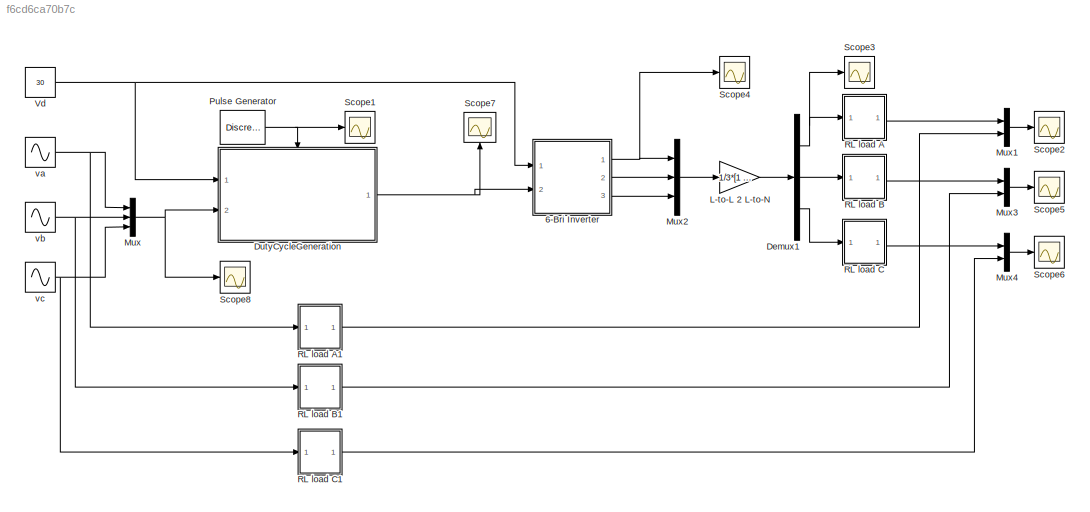
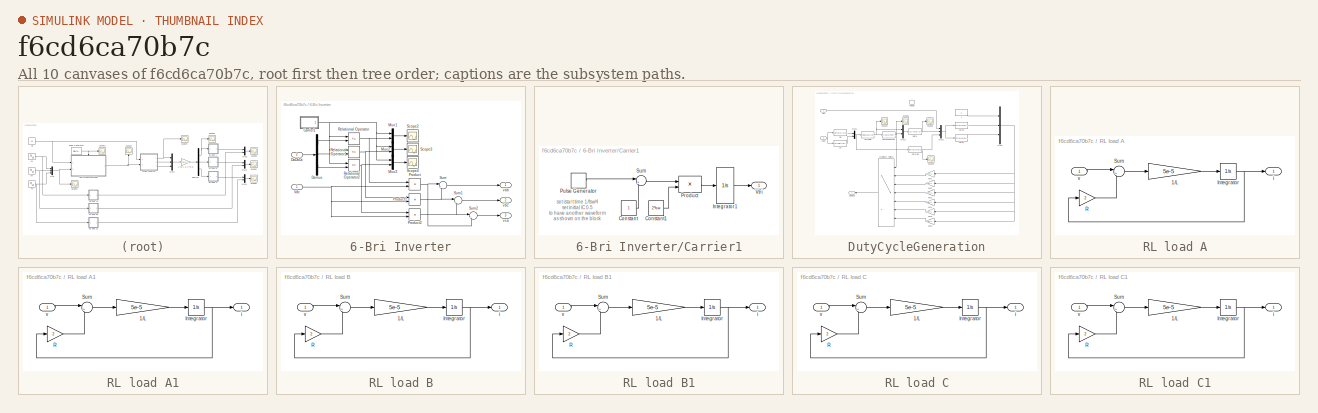
[diagram: thumbnail index - all 10 canvases of the model, root first then tree order]
MODEL slx_f6cd6ca70b7c
KIND model
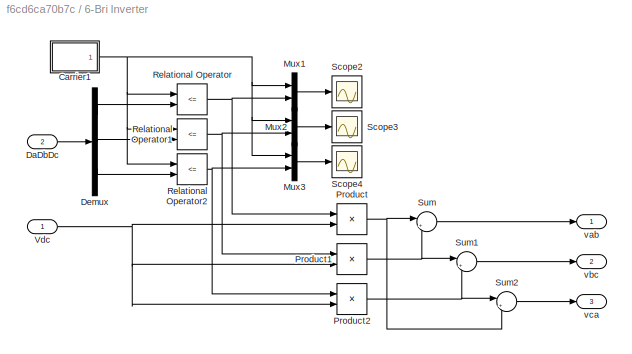
BLOCK [SubSystem] 6-Bri Inverter
  FunctionWithSeparateData = off
  MaskHideContents = off
  MinAlgLoopOccurrences = off
  Opaque = off
  Ports = [2, 3]
  PropExecContextOutsideSubsystem = off
  RTWSystemCode = Auto
  RequestExecContextInheritance = off
BLOCK [SubSystem] 6-Bri Inverter/Carrier1
  FunctionWithSeparateData = off
  MaskHideContents = off
  MinAlgLoopOccurrences = off
  Opaque = off
  Ports = [0, 1]
  PropExecContextOutsideSubsystem = off
  RTWSystemCode = Auto
  RequestExecContextInheritance = off
BLOCK [Constant] 6-Bri Inverter/Carrier1/Constant
BLOCK [Constant] 6-Bri Inverter/Carrier1/Constant1
  Value = 2*fsw
BLOCK [Integrator] 6-Bri Inverter/Carrier1/Integrator1
  Ports = [1, 1]
BLOCK [Product] 6-Bri Inverter/Carrier1/Product
  InputSameDT = off
  Ports = [2, 1]
  RndMeth = Floor
BLOCK [DiscretePulseGenerator] 6-Bri Inverter/Carrier1/Pulse Generator
  Amplitude = 2
  Period = 1/fsw
  Ports = [0, 1]
  PulseType = Time based
  PulseWidth = 50
BLOCK [Sum] 6-Bri Inverter/Carrier1/Sum
  IconShape = round
  InputSameDT = off
  Inputs = |+-
  OutDataTypeStr = Inherit: Inherit via internal rule
  Ports = [2, 1]
BLOCK [Outport] 6-Bri Inverter/Carrier1/Vtri
  IconDisplay = Port number
  InitialOutput = 0
BLOCK [Inport] 6-Bri Inverter/DaDbDc
  IconDisplay = Port number
  Port = 2
BLOCK [Demux] 6-Bri Inverter/Demux
  DisplayOption = bar
  Outputs = 3
  Ports = [1, 3]
BLOCK [Mux] 6-Bri Inverter/Mux1
  DisplayOption = bar
  Inputs = 2
  Ports = [2, 1]
BLOCK [Mux] 6-Bri Inverter/Mux2
  DisplayOption = bar
  Inputs = 2
  Ports = [2, 1]
BLOCK [Mux] 6-Bri Inverter/Mux3
  DisplayOption = bar
  Inputs = 2
  Ports = [2, 1]
BLOCK [Product] 6-Bri Inverter/Product
  InputSameDT = off
  OutDataTypeStr = Inherit: Inherit via internal rule
  Ports = [2, 1]
  SaturateOnIntegerOverflow = off
BLOCK [Product] 6-Bri Inverter/Product1
  InputSameDT = off
  OutDataTypeStr = Inherit: Inherit via internal rule
  Ports = [2, 1]
  SaturateOnIntegerOverflow = off
BLOCK [Product] 6-Bri Inverter/Product2
  InputSameDT = off
  OutDataTypeStr = Inherit: Inherit via internal rule
  Ports = [2, 1]
  SaturateOnIntegerOverflow = off
BLOCK [RelationalOperator] 6-Bri Inverter/Relational Operator
  InputSameDT = off
  Operator = <=
  Ports = [2, 1]
BLOCK [RelationalOperator] 6-Bri Inverter/Relational Operator1
  InputSameDT = off
  Operator = <=
  Ports = [2, 1]
BLOCK [RelationalOperator] 6-Bri Inverter/Relational Operator2
  InputSameDT = off
  Operator = <=
  Ports = [2, 1]
BLOCK [Scope] 6-Bri Inverter/Scope2
  DataFormat = StructureWithTime
  Floating = off
  NumInputPorts = 1
  Ports = [1]
  SampleTime = 0
  SaveName = ScopeData5
  ShowLegends = off
  ZoomMode = xonly
BLOCK [Scope] 6-Bri Inverter/Scope3
  DataFormat = StructureWithTime
  Floating = off
  NumInputPorts = 1
  Ports = [1]
  SampleTime = 0
  SaveName = ScopeData7
  ShowLegends = off
  ZoomMode = xonly
BLOCK [Scope] 6-Bri Inverter/Scope4
  DataFormat = StructureWithTime
  Floating = off
  NumInputPorts = 1
  Ports = [1]
  SampleTime = 0
  SaveName = ScopeData8
  ShowLegends = off
  ZoomMode = xonly
BLOCK [Sum] 6-Bri Inverter/Sum
  IconShape = round
  InputSameDT = off
  Inputs = |+-
  OutDataTypeStr = Inherit: Inherit via internal rule
  Ports = [2, 1]
  SaturateOnIntegerOverflow = off
BLOCK [Sum] 6-Bri Inverter/Sum1
  IconShape = round
  InputSameDT = off
  Inputs = |+-
  OutDataTypeStr = Inherit: Inherit via internal rule
  Ports = [2, 1]
  SaturateOnIntegerOverflow = off
BLOCK [Sum] 6-Bri Inverter/Sum2
  IconShape = round
  InputSameDT = off
  Inputs = |+-
  OutDataTypeStr = Inherit: Inherit via internal rule
  Ports = [2, 1]
  SaturateOnIntegerOverflow = off
BLOCK [Inport] 6-Bri Inverter/Vdc
  IconDisplay = Port number
BLOCK [Outport] 6-Bri Inverter/vab
  IconDisplay = Port number
BLOCK [Outport] 6-Bri Inverter/vbc
  IconDisplay = Port number
  Port = 2
BLOCK [Outport] 6-Bri Inverter/vca
  IconDisplay = Port number
  Port = 3
BLOCK [Demux] Demux1
  DisplayOption = bar
  Outputs = 3
  Ports = [1, 3]
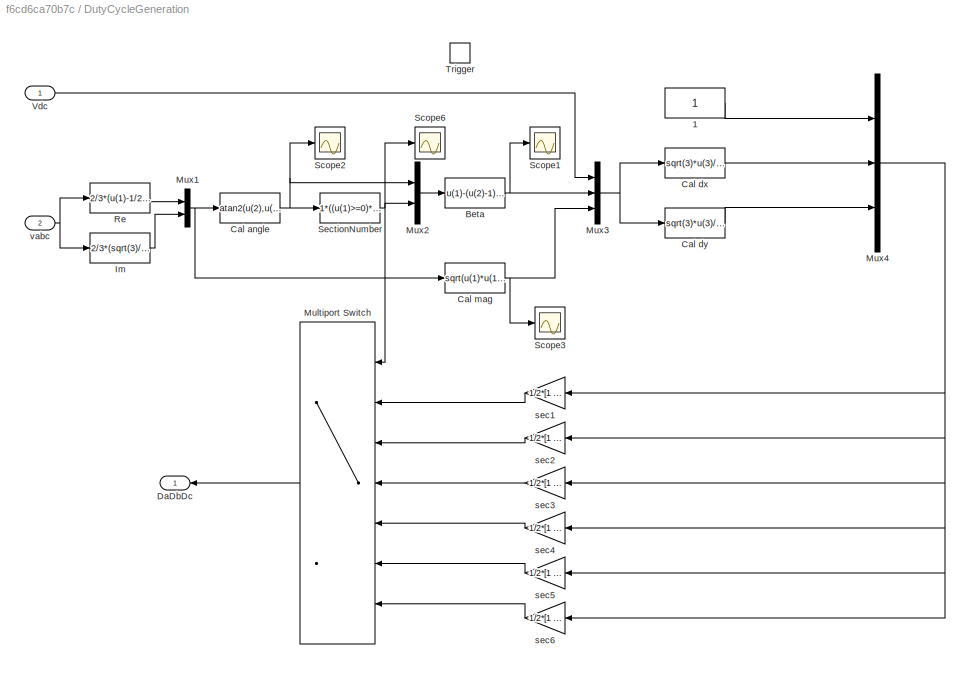
BLOCK [SubSystem] DutyCycleGeneration
  FunctionWithSeparateData = off
  MaskHideContents = off
  MinAlgLoopOccurrences = off
  Opaque = off
  Ports = [2, 1, 0, 1]
  PropExecContextOutsideSubsystem = off
  RTWSystemCode = Auto
  RequestExecContextInheritance = off
BLOCK [Constant] DutyCycleGeneration/1
BLOCK [Fcn] DutyCycleGeneration/Beta
  Expr = u(1)-(u(2)-1)*60
BLOCK [Fcn] DutyCycleGeneration/Cal angle
  Expr = atan2(u(2),u(1))*180/pi+(u(2)<0)*360
BLOCK [Fcn] DutyCycleGeneration/Cal dx
  Expr = sqrt(3)*u(3)/u(1)*sin(pi/3-u(2)*pi/180)
BLOCK [Fcn] DutyCycleGeneration/Cal dy
  Expr = sqrt(3)*u(3)/u(1)*sin(u(2)*pi/180)
BLOCK [Fcn] DutyCycleGeneration/Cal mag 
  Expr = sqrt(u(1)*u(1)+u(2)*u(2))
BLOCK [Outport] DutyCycleGeneration/DaDbDc
  IconDisplay = Port number
BLOCK [Fcn] DutyCycleGeneration/Im
  Expr = 2/3*(sqrt(3)/2*u(2)-sqrt(3)/2*u(3))
BLOCK [MultiPortSwitch] DutyCycleGeneration/Multiport Switch
  InputSameDT = off
  Inputs = 6
  Ports = [7, 1]
  SaturateOnIntegerOverflow = off
BLOCK [Mux] DutyCycleGeneration/Mux1
  DisplayOption = bar
  Inputs = 2
  Ports = [2, 1]
BLOCK [Mux] DutyCycleGeneration/Mux2
  DisplayOption = bar
  Inputs = 2
  Ports = [2, 1]
BLOCK [Mux] DutyCycleGeneration/Mux3
  DisplayOption = bar
  Inputs = 3
  Ports = [3, 1]
BLOCK [Mux] DutyCycleGeneration/Mux4
  DisplayOption = bar
  Inputs = 3
  Ports = [3, 1]
BLOCK [Fcn] DutyCycleGeneration/Re
  Expr = 2/3*(u(1)-1/2*u(2)-1/2*u(3))
BLOCK [Scope] DutyCycleGeneration/Scope1
  DataFormat = StructureWithTime
  Floating = off
  NumInputPorts = 1
  Ports = [1]
  SampleTime = 0
  SaveName = ScopeData1
  ShowLegends = off
  ZoomMode = xonly
BLOCK [Scope] DutyCycleGeneration/Scope2
  DataFormat = StructureWithTime
  Floating = off
  NumInputPorts = 1
  Ports = [1]
  SampleTime = 0
  SaveName = ScopeData2
  ShowLegends = off
BLOCK [Scope] DutyCycleGeneration/Scope3
  DataFormat = StructureWithTime
  Floating = off
  NumInputPorts = 1
  Ports = [1]
  SampleTime = 0
  SaveName = ScopeData3
  ShowLegends = off
  ZoomMode = xonly
BLOCK [Scope] DutyCycleGeneration/Scope6
  DataFormat = StructureWithTime
  Floating = off
  NumInputPorts = 1
  Ports = [1]
  SampleTime = 0
  SaveName = ScopeData6
  ShowLegends = off
BLOCK [Fcn] DutyCycleGeneration/SectionNumber
  Expr = 1*((u(1)>=0)*(u(1)<60))+2*((u(1)>=60)*(u(1)<120))+3*((u(1)>=120)*(u(1)<180))+4*((u(1)>=180)*(u(1)<240))+5*((u(1)>=240)*(u(1)<300))+6*((u(1)>=300)*(u(1)<=360))
BLOCK [TriggerPort] DutyCycleGeneration/Trigger
  Ports = []
  StatesWhenEnabling = held
BLOCK [Inport] DutyCycleGeneration/Vdc
  IconDisplay = Port number
BLOCK [Gain] DutyCycleGeneration/sec1
  Gain = 1/2*[1 1 1; 1 -1 1; 1 -1 -1]
  Multiplication = Matrix(K*u)
  OutDataTypeStr = Inherit: Inherit via internal rule
  ParamDataTypeStr = Inherit: Inherit via internal rule
  SaturateOnIntegerOverflow = off
BLOCK [Gain] DutyCycleGeneration/sec2
  Gain = 1/2*[1 1 -1; 1 1 1; 1 -1 -1]
  Multiplication = Matrix(K*u)
  OutDataTypeStr = Inherit: Inherit via internal rule
  ParamDataTypeStr = Inherit: Inherit via internal rule
  SaturateOnIntegerOverflow = off
BLOCK [Gain] DutyCycleGeneration/sec3
  Gain = 1/2*[1 -1 -1; 1 1 1; 1 -1 1]
  Multiplication = Matrix(K*u)
  OutDataTypeStr = Inherit: Inherit via internal rule
  ParamDataTypeStr = Inherit: Inherit via internal rule
  SaturateOnIntegerOverflow = off
BLOCK [Gain] DutyCycleGeneration/sec4
  Gain = 1/2*[1 -1 -1; 1 1 -1; 1 1 1]
  Multiplication = Matrix(K*u)
  OutDataTypeStr = Inherit: Inherit via internal rule
  ParamDataTypeStr = Inherit: Inherit via internal rule
  SaturateOnIntegerOverflow = off
BLOCK [Gain] DutyCycleGeneration/sec5
  Gain = 1/2*[1 -1 1; 1 -1 -1; 1 1 1]
  Multiplication = Matrix(K*u)
  OutDataTypeStr = Inherit: Inherit via internal rule
  ParamDataTypeStr = Inherit: Inherit via internal rule
  SaturateOnIntegerOverflow = off
BLOCK [Gain] DutyCycleGeneration/sec6
  Gain = 1/2*[1 1 1; 1 -1 -1; 1 1 -1]
  Multiplication = Matrix(K*u)
  OutDataTypeStr = Inherit: Inherit via internal rule
  ParamDataTypeStr = Inherit: Inherit via internal rule
  SaturateOnIntegerOverflow = off
BLOCK [Inport] DutyCycleGeneration/vabc
  IconDisplay = Port number
  Port = 2
BLOCK [Gain] L-to-L 2 L-to-N
  Gain = 1/3*[1 0 -1; -1 1 0; 0 -1 1]
  Multiplication = Matrix(K*u)
  OutDataTypeStr = Inherit: Inherit via internal rule
  ParamDataTypeStr = Inherit: Inherit via internal rule
  SaturateOnIntegerOverflow = off
BLOCK [Mux] Mux
  DisplayOption = bar
  Inputs = 3
  Ports = [3, 1]
BLOCK [Mux] Mux1
  DisplayOption = bar
  Inputs = 2
  Ports = [2, 1]
BLOCK [Mux] Mux2
  DisplayOption = bar
  Inputs = 3
  Ports = [3, 1]
BLOCK [Mux] Mux3
  DisplayOption = bar
  Inputs = 2
  Ports = [2, 1]
BLOCK [Mux] Mux4
  DisplayOption = bar
  Inputs = 2
  Ports = [2, 1]
BLOCK [DiscretePulseGenerator] Pulse Generator
  Period = 1/fs
  PhaseDelay = 1/fs/4
  Ports = [0, 1]
  PulseType = Time based
  PulseWidth = 50
BLOCK [SubSystem] RL load A
  FunctionWithSeparateData = off
  MaskHideContents = off
  MinAlgLoopOccurrences = off
  Opaque = off
  Ports = [1, 1]
  PropExecContextOutsideSubsystem = off
  RTWSystemCode = Auto
  RequestExecContextInheritance = off
BLOCK [Gain] RL load A/1//L
  Gain = 5e-5
  OutDataTypeStr = Inherit: Inherit via internal rule
  ParamDataTypeStr = Inherit: Inherit via internal rule
  SaturateOnIntegerOverflow = off
BLOCK [Integrator] RL load A/Integrator
  Ports = [1, 1]
BLOCK [Gain] RL load A/R
  Gain = 2
  OutDataTypeStr = Inherit: Inherit via internal rule
  ParamDataTypeStr = Inherit: Inherit via internal rule
  SaturateOnIntegerOverflow = off
BLOCK [Sum] RL load A/Sum
  IconShape = round
  InputSameDT = off
  Inputs = |+-
  OutDataTypeStr = Inherit: Inherit via internal rule
  Ports = [2, 1]
  SaturateOnIntegerOverflow = off
BLOCK [Outport] RL load A/i
  IconDisplay = Port number
BLOCK [Inport] RL load A/v
  IconDisplay = Port number
BLOCK [SubSystem] RL load A1
  FunctionWithSeparateData = off
  MaskHideContents = off
  MinAlgLoopOccurrences = off
  Opaque = off
  Ports = [1, 1]
  PropExecContextOutsideSubsystem = off
  RTWSystemCode = Auto
  RequestExecContextInheritance = off
BLOCK [Gain] RL load A1/1//L
  Gain = 5e-5
  OutDataTypeStr = Inherit: Inherit via internal rule
  ParamDataTypeStr = Inherit: Inherit via internal rule
  SaturateOnIntegerOverflow = off
BLOCK [Integrator] RL load A1/Integrator
  Ports = [1, 1]
BLOCK [Gain] RL load A1/R
  Gain = 2
  OutDataTypeStr = Inherit: Inherit via internal rule
  ParamDataTypeStr = Inherit: Inherit via internal rule
  SaturateOnIntegerOverflow = off
BLOCK [Sum] RL load A1/Sum
  IconShape = round
  InputSameDT = off
  Inputs = |+-
  OutDataTypeStr = Inherit: Inherit via internal rule
  Ports = [2, 1]
  SaturateOnIntegerOverflow = off
BLOCK [Outport] RL load A1/i
  IconDisplay = Port number
BLOCK [Inport] RL load A1/v
  IconDisplay = Port number
BLOCK [SubSystem] RL load B
  FunctionWithSeparateData = off
  MaskHideContents = off
  MinAlgLoopOccurrences = off
  Opaque = off
  Ports = [1, 1]
  PropExecContextOutsideSubsystem = off
  RTWSystemCode = Auto
  RequestExecContextInheritance = off
BLOCK [Gain] RL load B/1//L
  Gain = 5e-5
  OutDataTypeStr = Inherit: Inherit via internal rule
  ParamDataTypeStr = Inherit: Inherit via internal rule
  SaturateOnIntegerOverflow = off
BLOCK [Integrator] RL load B/Integrator
  Ports = [1, 1]
BLOCK [Gain] RL load B/R
  Gain = 2
  OutDataTypeStr = Inherit: Inherit via internal rule
  ParamDataTypeStr = Inherit: Inherit via internal rule
  SaturateOnIntegerOverflow = off
BLOCK [Sum] RL load B/Sum
  IconShape = round
  InputSameDT = off
  Inputs = |+-
  OutDataTypeStr = Inherit: Inherit via internal rule
  Ports = [2, 1]
  SaturateOnIntegerOverflow = off
BLOCK [Outport] RL load B/i
  IconDisplay = Port number
BLOCK [Inport] RL load B/v
  IconDisplay = Port number
BLOCK [SubSystem] RL load B1
  FunctionWithSeparateData = off
  MaskHideContents = off
  MinAlgLoopOccurrences = off
  Opaque = off
  Ports = [1, 1]
  PropExecContextOutsideSubsystem = off
  RTWSystemCode = Auto
  RequestExecContextInheritance = off
BLOCK [Gain] RL load B1/1//L
  Gain = 5e-5
  OutDataTypeStr = Inherit: Inherit via internal rule
  ParamDataTypeStr = Inherit: Inherit via internal rule
  SaturateOnIntegerOverflow = off
BLOCK [Integrator] RL load B1/Integrator
  Ports = [1, 1]
BLOCK [Gain] RL load B1/R
  Gain = 2
  OutDataTypeStr = Inherit: Inherit via internal rule
  ParamDataTypeStr = Inherit: Inherit via internal rule
  SaturateOnIntegerOverflow = off
BLOCK [Sum] RL load B1/Sum
  IconShape = round
  InputSameDT = off
  Inputs = |+-
  OutDataTypeStr = Inherit: Inherit via internal rule
  Ports = [2, 1]
  SaturateOnIntegerOverflow = off
BLOCK [Outport] RL load B1/i
  IconDisplay = Port number
BLOCK [Inport] RL load B1/v
  IconDisplay = Port number
BLOCK [SubSystem] RL load C
  FunctionWithSeparateData = off
  MaskHideContents = off
  MinAlgLoopOccurrences = off
  Opaque = off
  Ports = [1, 1]
  PropExecContextOutsideSubsystem = off
  RTWSystemCode = Auto
  RequestExecContextInheritance = off
BLOCK [Gain] RL load C/1//L
  Gain = 5e-5
  OutDataTypeStr = Inherit: Inherit via internal rule
  ParamDataTypeStr = Inherit: Inherit via internal rule
  SaturateOnIntegerOverflow = off
BLOCK [Integrator] RL load C/Integrator
  Ports = [1, 1]
BLOCK [Gain] RL load C/R
  Gain = 2
  OutDataTypeStr = Inherit: Inherit via internal rule
  ParamDataTypeStr = Inherit: Inherit via internal rule
  SaturateOnIntegerOverflow = off
BLOCK [Sum] RL load C/Sum
  IconShape = round
  InputSameDT = off
  Inputs = |+-
  OutDataTypeStr = Inherit: Inherit via internal rule
  Ports = [2, 1]
  SaturateOnIntegerOverflow = off
BLOCK [Outport] RL load C/i
  IconDisplay = Port number
BLOCK [Inport] RL load C/v
  IconDisplay = Port number
BLOCK [SubSystem] RL load C1
  FunctionWithSeparateData = off
  MaskHideContents = off
  MinAlgLoopOccurrences = off
  Opaque = off
  Ports = [1, 1]
  PropExecContextOutsideSubsystem = off
  RTWSystemCode = Auto
  RequestExecContextInheritance = off
BLOCK [Gain] RL load C1/1//L
  Gain = 5e-5
  OutDataTypeStr = Inherit: Inherit via internal rule
  ParamDataTypeStr = Inherit: Inherit via internal rule
  SaturateOnIntegerOverflow = off
BLOCK [Integrator] RL load C1/Integrator
  Ports = [1, 1]
BLOCK [Gain] RL load C1/R
  Gain = 2
  OutDataTypeStr = Inherit: Inherit via internal rule
  ParamDataTypeStr = Inherit: Inherit via internal rule
  SaturateOnIntegerOverflow = off
BLOCK [Sum] RL load C1/Sum
  IconShape = round
  InputSameDT = off
  Inputs = |+-
  OutDataTypeStr = Inherit: Inherit via internal rule
  Ports = [2, 1]
  SaturateOnIntegerOverflow = off
BLOCK [Outport] RL load C1/i
  IconDisplay = Port number
BLOCK [Inport] RL load C1/v
  IconDisplay = Port number
BLOCK [Scope] Scope1
  DataFormat = StructureWithTime
  Floating = off
  NumInputPorts = 1
  Ports = [1]
  SampleTime = 0
  SaveName = ScopeData4
  ShowLegends = off
  ZoomMode = xonly
BLOCK [Scope] Scope2
  DataFormat = StructureWithTime
  Floating = off
  LimitDataPoints = off
  NumInputPorts = 1
  Ports = [1]
  SampleTime = 0
  SaveName = ScopeData9
  ShowLegends = off
BLOCK [Scope] Scope3
  DataFormat = StructureWithTime
  Floating = off
  NumInputPorts = 1
  Ports = [1]
  SampleTime = 0
  SaveName = ScopeData10
  ShowLegends = off
  ZoomMode = xonly
BLOCK [Scope] Scope4
  DataFormat = StructureWithTime
  Floating = off
  NumInputPorts = 1
  Ports = [1]
  SampleTime = 0
  SaveName = ScopeData11
  ShowLegends = off
  ZoomMode = xonly
BLOCK [Scope] Scope5
  DataFormat = StructureWithTime
  Floating = off
  LimitDataPoints = off
  NumInputPorts = 1
  Ports = [1]
  SampleTime = 0
  SaveName = ScopeData12
  ShowLegends = off
  ZoomMode = xonly
BLOCK [Scope] Scope6
  DataFormat = StructureWithTime
  Floating = off
  LimitDataPoints = off
  NumInputPorts = 1
  Ports = [1]
  SampleTime = 0
  SaveName = ScopeData13
  ShowLegends = off
  ZoomMode = xonly
BLOCK [Scope] Scope7
  DataFormat = StructureWithTime
  Floating = off
  NumInputPorts = 1
  Ports = [1]
  SampleTime = 0
  ShowLegends = off
  ZoomMode = xonly
BLOCK [Scope] Scope8
  DataFormat = StructureWithTime
  Floating = off
  NumInputPorts = 1
  Ports = [1]
  SampleTime = 0
  SaveName = ScopeData14
  ShowLegends = off
  ZoomMode = xonly
BLOCK [Constant] Vd
  Value = 30
BLOCK [Sin] va
  Amplitude = 10
  Frequency = 2*pi*50
  Phase = pi/2
  Ports = [0, 1]
  SampleTime = 0
BLOCK [Sin] vb
  Amplitude = 10
  Frequency = 2*pi*50
  Phase = -2*pi/3+pi/2
  Ports = [0, 1]
  SampleTime = 0
BLOCK [Sin] vc
  Amplitude = 10
  Frequency = 2*pi*50
  Phase = +2*pi/3+pi/2
  Ports = [0, 1]
  SampleTime = 0
ANNOTATION 6-Bri Inverter/Carrier1: set istart time 1/fsw/4 set initial IC 0.5 to have another waveform as shown on the block
LINE 6-Bri Inverter/Carrier1/Constant1:1 -> 6-Bri Inverter/Carrier1/Product:2
LINE 6-Bri Inverter/Carrier1/Constant:1 -> 6-Bri Inverter/Carrier1/Sum:2
LINE 6-Bri Inverter/Carrier1/Integrator1:1 -> 6-Bri Inverter/Carrier1/Vtri:1
LINE 6-Bri Inverter/Carrier1/Product:1 -> 6-Bri Inverter/Carrier1/Integrator1:1
LINE 6-Bri Inverter/Carrier1/Pulse Generator:1 -> 6-Bri Inverter/Carrier1/Sum:1
LINE 6-Bri Inverter/Carrier1/Sum:1 -> 6-Bri Inverter/Carrier1/Product:1
NET 6-Bri Inverter/Carrier1:1 -> 6-Bri Inverter/Mux1:1, 6-Bri Inverter/Mux2:1, 6-Bri Inverter/Mux3:1, 6-Bri Inverter/Relational Operator1:1, 6-Bri Inverter/Relational Operator2:1, 6-Bri Inverter/Relational Operator:1
LINE 6-Bri Inverter/DaDbDc:1 -> 6-Bri Inverter/Demux:1
LINE 6-Bri Inverter/Demux:1 -> 6-Bri Inverter/Relational Operator:2
LINE 6-Bri Inverter/Demux:2 -> 6-Bri Inverter/Relational Operator1:2
LINE 6-Bri Inverter/Demux:3 -> 6-Bri Inverter/Relational Operator2:2
LINE 6-Bri Inverter/Mux1:1 -> 6-Bri Inverter/Scope2:1
LINE 6-Bri Inverter/Mux2:1 -> 6-Bri Inverter/Scope3:1
LINE 6-Bri Inverter/Mux3:1 -> 6-Bri Inverter/Scope4:1
NET 6-Bri Inverter/Product1:1 -> 6-Bri Inverter/Sum1:1, 6-Bri Inverter/Sum:2
NET 6-Bri Inverter/Product2:1 -> 6-Bri Inverter/Sum1:2, 6-Bri Inverter/Sum2:1
NET 6-Bri Inverter/Product:1 -> 6-Bri Inverter/Sum2:2, 6-Bri Inverter/Sum:1
NET 6-Bri Inverter/Relational Operator1:1 -> 6-Bri Inverter/Mux2:2, 6-Bri Inverter/Product1:1
NET 6-Bri Inverter/Relational Operator2:1 -> 6-Bri Inverter/Mux3:2, 6-Bri Inverter/Product2:1
NET 6-Bri Inverter/Relational Operator:1 -> 6-Bri Inverter/Mux1:2, 6-Bri Inverter/Product:1
LINE 6-Bri Inverter/Sum1:1 -> 6-Bri Inverter/vbc:1
LINE 6-Bri Inverter/Sum2:1 -> 6-Bri Inverter/vca:1
LINE 6-Bri Inverter/Sum:1 -> 6-Bri Inverter/vab:1
NET 6-Bri Inverter/Vdc:1 -> 6-Bri Inverter/Product1:2, 6-Bri Inverter/Product2:2, 6-Bri Inverter/Product:2
NET 6-Bri Inverter:1 -> Mux2:1, Scope4:1
LINE 6-Bri Inverter:2 -> Mux2:2
LINE 6-Bri Inverter:3 -> Mux2:3
NET Demux1:1 -> RL load A:1, Scope3:1
LINE Demux1:2 -> RL load B:1
LINE Demux1:3 -> RL load C:1
LINE DutyCycleGeneration/1:1 -> DutyCycleGeneration/Mux4:1
NET DutyCycleGeneration/Beta:1 -> DutyCycleGeneration/Mux3:2, DutyCycleGeneration/Scope1:1
NET DutyCycleGeneration/Cal angle:1 -> DutyCycleGeneration/Mux2:1, DutyCycleGeneration/Scope2:1, DutyCycleGeneration/SectionNumber:1
LINE DutyCycleGeneration/Cal dx:1 -> DutyCycleGeneration/Mux4:2
LINE DutyCycleGeneration/Cal dy:1 -> DutyCycleGeneration/Mux4:3
NET DutyCycleGeneration/Cal mag :1 -> DutyCycleGeneration/Mux3:3, DutyCycleGeneration/Scope3:1
LINE DutyCycleGeneration/Im:1 -> DutyCycleGeneration/Mux1:2
LINE DutyCycleGeneration/Multiport Switch:1 -> DutyCycleGeneration/DaDbDc:1
NET DutyCycleGeneration/Mux1:1 -> DutyCycleGeneration/Cal angle:1, DutyCycleGeneration/Cal mag :1
LINE DutyCycleGeneration/Mux2:1 -> DutyCycleGeneration/Beta:1
NET DutyCycleGeneration/Mux3:1 -> DutyCycleGeneration/Cal dx:1, DutyCycleGeneration/Cal dy:1
NET DutyCycleGeneration/Mux4:1 -> DutyCycleGeneration/sec1:1, DutyCycleGeneration/sec2:1, DutyCycleGeneration/sec3:1, DutyCycleGeneration/sec4:1, DutyCycleGeneration/sec5:1, DutyCycleGeneration/sec6:1
LINE DutyCycleGeneration/Re:1 -> DutyCycleGeneration/Mux1:1
NET DutyCycleGeneration/SectionNumber:1 -> DutyCycleGeneration/Multiport Switch:1, DutyCycleGeneration/Mux2:2, DutyCycleGeneration/Scope6:1
LINE DutyCycleGeneration/Vdc:1 -> DutyCycleGeneration/Mux3:1
LINE DutyCycleGeneration/sec1:1 -> DutyCycleGeneration/Multiport Switch:2
LINE DutyCycleGeneration/sec2:1 -> DutyCycleGeneration/Multiport Switch:3
LINE DutyCycleGeneration/sec3:1 -> DutyCycleGeneration/Multiport Switch:4
LINE DutyCycleGeneration/sec4:1 -> DutyCycleGeneration/Multiport Switch:5
LINE DutyCycleGeneration/sec5:1 -> DutyCycleGeneration/Multiport Switch:6
LINE DutyCycleGeneration/sec6:1 -> DutyCycleGeneration/Multiport Switch:7
NET DutyCycleGeneration/vabc:1 -> DutyCycleGeneration/Im:1, DutyCycleGeneration/Re:1
NET DutyCycleGeneration:1 -> 6-Bri Inverter:2, Scope7:1
LINE L-to-L 2 L-to-N:1 -> Demux1:1
LINE Mux1:1 -> Scope2:1
LINE Mux2:1 -> L-to-L 2 L-to-N:1
LINE Mux3:1 -> Scope5:1
LINE Mux4:1 -> Scope6:1
NET Mux:1 -> DutyCycleGeneration:2, Scope8:1
NET Pulse Generator:1 -> DutyCycleGeneration:trigger, Scope1:1
LINE RL load A/1//L:1 -> RL load A/Integrator:1
NET RL load A/Integrator:1 -> RL load A/R:1, RL load A/i:1
LINE RL load A/R:1 -> RL load A/Sum:2
LINE RL load A/Sum:1 -> RL load A/1//L:1
LINE RL load A/v:1 -> RL load A/Sum:1
LINE RL load A1/1//L:1 -> RL load A1/Integrator:1
NET RL load A1/Integrator:1 -> RL load A1/R:1, RL load A1/i:1
LINE RL load A1/R:1 -> RL load A1/Sum:2
LINE RL load A1/Sum:1 -> RL load A1/1//L:1
LINE RL load A1/v:1 -> RL load A1/Sum:1
LINE RL load A1:1 -> Mux1:2
LINE RL load A:1 -> Mux1:1
LINE RL load B/1//L:1 -> RL load B/Integrator:1
NET RL load B/Integrator:1 -> RL load B/R:1, RL load B/i:1
LINE RL load B/R:1 -> RL load B/Sum:2
LINE RL load B/Sum:1 -> RL load B/1//L:1
LINE RL load B/v:1 -> RL load B/Sum:1
LINE RL load B1/1//L:1 -> RL load B1/Integrator:1
NET RL load B1/Integrator:1 -> RL load B1/R:1, RL load B1/i:1
LINE RL load B1/R:1 -> RL load B1/Sum:2
LINE RL load B1/Sum:1 -> RL load B1/1//L:1
LINE RL load B1/v:1 -> RL load B1/Sum:1
LINE RL load B1:1 -> Mux3:2
LINE RL load B:1 -> Mux3:1
LINE RL load C/1//L:1 -> RL load C/Integrator:1
NET RL load C/Integrator:1 -> RL load C/R:1, RL load C/i:1
LINE RL load C/R:1 -> RL load C/Sum:2
LINE RL load C/Sum:1 -> RL load C/1//L:1
LINE RL load C/v:1 -> RL load C/Sum:1
LINE RL load C1/1//L:1 -> RL load C1/Integrator:1
NET RL load C1/Integrator:1 -> RL load C1/R:1, RL load C1/i:1
LINE RL load C1/R:1 -> RL load C1/Sum:2
LINE RL load C1/Sum:1 -> RL load C1/1//L:1
LINE RL load C1/v:1 -> RL load C1/Sum:1
LINE RL load C1:1 -> Mux4:2
LINE RL load C:1 -> Mux4:1
NET Vd:1 -> 6-Bri Inverter:1, DutyCycleGeneration:1
NET va:1 -> Mux:1, RL load A1:1
NET vb:1 -> Mux:2, RL load B1:1
NET vc:1 -> Mux:3, RL load C1:1
note: NET lines group one-source signal fan-out (src -> all destinations, sorted); 1:1 wires keep LINE
